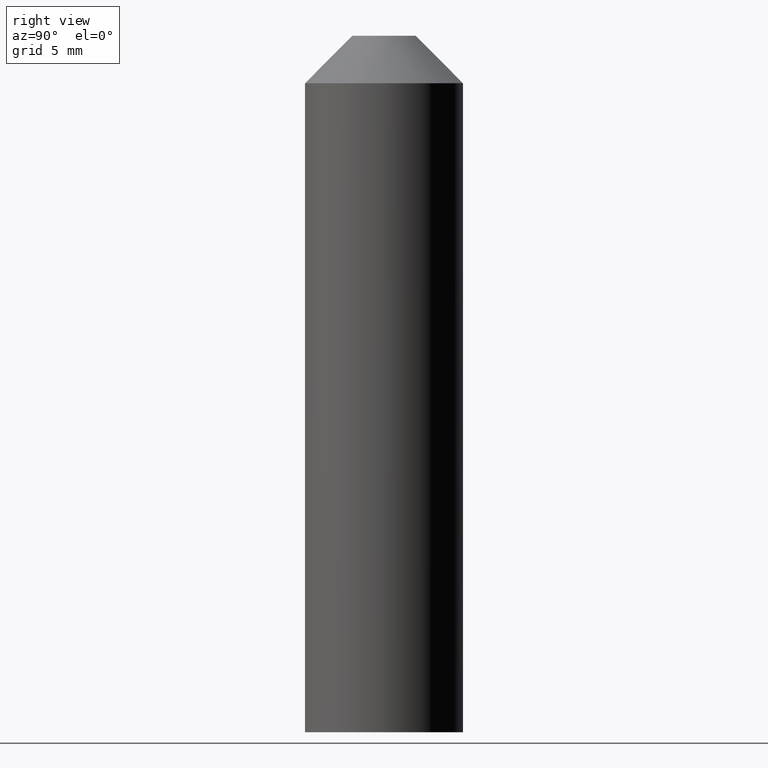
[diagram: clean part render]
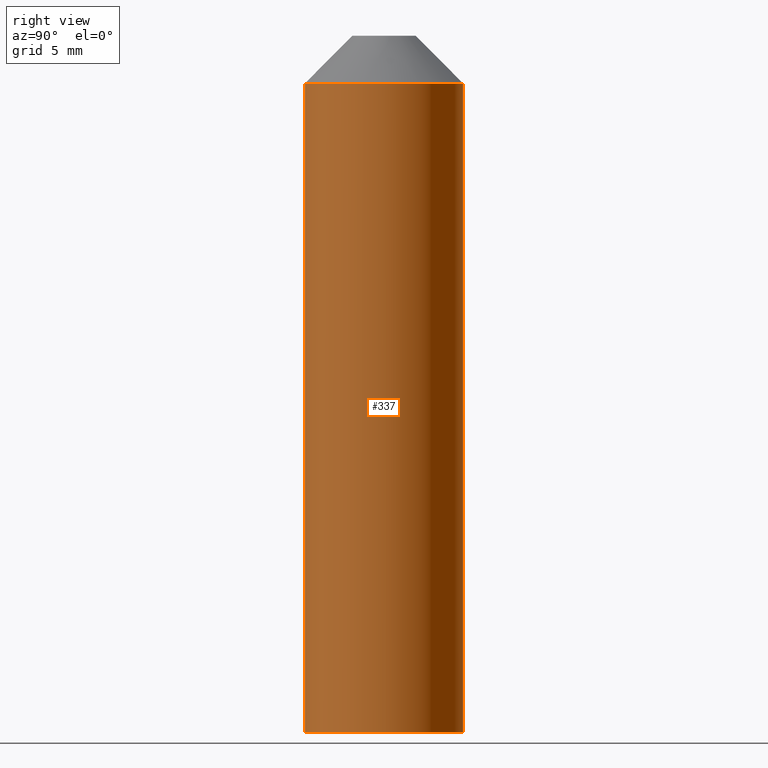
[diagram: same view with one face highlighted and labeled with its STEP entity id]
A machine part, right view. The second image highlights one B-rep face of the part: STEP entity #337.
In plain terms, the highlighted face is a freeform B-spline surface patch.
Its self-contained STEP definition (entity closure, byte-faithful):
#95=CARTESIAN_POINT('',(-0.305242697718337,4.990673992112464,40.999999999988383));
#96=VERTEX_POINT('',#95);
#97=CARTESIAN_POINT('',(5.0,0.0,41.0));
#98=VERTEX_POINT('',#97);
#99=CARTESIAN_POINT('',(-0.305242697718337,4.990673992112465,40.999999999988383));
#100=CARTESIAN_POINT('',(-0.152763816494045,5.000000000008354,40.999999999988546));
#101=CARTESIAN_POINT('',(4.205639E-011,5.000000000008225,40.999999999988717));
#102=CARTESIAN_POINT('',(5.000000000020386,5.000000000003987,40.999999999994543));
#103=CARTESIAN_POINT('',(5.0,0.0,41.0));
#111=(BOUNDED_CURVE()B_SPLINE_CURVE(2,(#99,#100,#101,#102,#103),.UNSPECIFIED.,.F.,.U.)B_SPLINE_CURVE_WITH_KNOTS((3,2,3),(0.239332962238947,0.250000000000000,0.500000000000000),.UNSPECIFIED.)CURVE()GEOMETRIC_REPRESENTATION_ITEM()RATIONAL_B_SPLINE_CURVE((0.976072041666726,0.987502787899842,1.0,0.707106781186548,1.0))REPRESENTATION_ITEM(''));
#112=EDGE_CURVE('',#96,#98,#111,.T.);
#121=CARTESIAN_POINT('',(0.305242697718337,-4.990673992112464,40.999999999988383));
#122=VERTEX_POINT('',#121);
#128=CARTESIAN_POINT('',(5.0,0.0,41.0));
#129=CARTESIAN_POINT('',(4.999999999978329,-4.703530334450192,40.999999999994202));
#130=CARTESIAN_POINT('',(0.305242697718336,-4.990673992112466,40.999999999988376));
#138=(BOUNDED_CURVE()B_SPLINE_CURVE(2,(#128,#129,#130),.UNSPECIFIED.,.F.,.U.)B_SPLINE_CURVE_WITH_KNOTS((3,3),(0.500000000000000,0.739332962238947),.UNSPECIFIED.)CURVE()GEOMETRIC_REPRESENTATION_ITEM()RATIONAL_B_SPLINE_CURVE((1.0,0.719603993286706,0.976072041666726))REPRESENTATION_ITEM(''));
#139=EDGE_CURVE('',#98,#122,#138,.T.);
#271=CARTESIAN_POINT('',(-0.305242697674285,4.990673992109334,42.025000000000013));
#272=CARTESIAN_POINT('',(4.685431294435048,5.295916689783620,42.025000000000013));
#273=CARTESIAN_POINT('',(4.990673992109334,0.305242697674285,42.025000000000013));
#274=CARTESIAN_POINT('',(5.295916689783620,-4.685431294435048,42.025000000000013));
#275=CARTESIAN_POINT('',(0.305242697674285,-4.990673992109334,42.025000000000013));
#276=CARTESIAN_POINT('',(-0.305242697674285,4.990673992109334,-1.050625000000117));
#277=CARTESIAN_POINT('',(4.685431294435048,5.295916689783620,-1.050625000000117));
#278=CARTESIAN_POINT('',(4.990673992109334,0.305242697674285,-1.050625000000117));
#279=CARTESIAN_POINT('',(5.295916689783620,-4.685431294435048,-1.050625000000117));
#280=CARTESIAN_POINT('',(0.305242697674285,-4.990673992109334,-1.050625000000117));
#288=(BOUNDED_SURFACE()B_SPLINE_SURFACE(2,1,((#271,#276),(#272,#277),(#273,#278),(#274,#279),(#275,#280)),.UNSPECIFIED.,.F.,.F.,.U.)B_SPLINE_SURFACE_WITH_KNOTS((3,2,3),(2,2),(0.0,8.284271247461899,16.568542494923800),(0.0,43.075625000000130),.UNSPECIFIED.)GEOMETRIC_REPRESENTATION_ITEM()RATIONAL_B_SPLINE_SURFACE(((1.0,1.0),(0.707106781186548,0.707106781186548),(1.0,1.0),(0.707106781186548,0.707106781186548),(1.0,1.0)))REPRESENTATION_ITEM('')SURFACE());
#289=CARTESIAN_POINT('',(-0.305242697700495,4.990673992107730,-1.134648E-013));
#290=VERTEX_POINT('',#289);
#291=CARTESIAN_POINT('',(-0.305242697718337,4.990673992112464,40.999999999988383));
#292=CARTESIAN_POINT('',(-0.305242697700495,4.990673992107730,-1.134648E-013));
#293=QUASI_UNIFORM_CURVE('',1,(#291,#292),.UNSPECIFIED.,.F.,.U.);
#294=EDGE_CURVE('',#96,#290,#293,.T.);
#295=ORIENTED_EDGE('',*,*,#294,.F.);
#296=ORIENTED_EDGE('',*,*,#112,.T.);
#297=ORIENTED_EDGE('',*,*,#139,.T.);
#298=CARTESIAN_POINT('',(0.305242697700496,-4.990673992107731,-1.133588E-013));
#299=VERTEX_POINT('',#298);
#300=CARTESIAN_POINT('',(0.305242697718337,-4.990673992112464,40.999999999988383));
#301=CARTESIAN_POINT('',(0.305242697700496,-4.990673992107731,-1.133588E-013));
#302=QUASI_UNIFORM_CURVE('',1,(#300,#301),.UNSPECIFIED.,.F.,.U.);
#303=EDGE_CURVE('',#122,#299,#302,.T.);
#304=ORIENTED_EDGE('',*,*,#303,.T.);
#305=CARTESIAN_POINT('',(5.0,0.0,0.0));
#306=VERTEX_POINT('',#305);
#307=CARTESIAN_POINT('',(5.0,0.0,0.0));
#308=CARTESIAN_POINT('',(5.0,-4.703530334503724,-1.069459E-013));
#309=CARTESIAN_POINT('',(0.305242697700497,-4.990673992107731,-1.134748E-013));
#317=(BOUNDED_CURVE()B_SPLINE_CURVE(2,(#307,#308,#309),.UNSPECIFIED.,.F.,.U.)B_SPLINE_CURVE_WITH_KNOTS((3,3),(0.500000000000000,0.739332962241062),.UNSPECIFIED.)CURVE()GEOMETRIC_REPRESENTATION_ITEM()RATIONAL_B_SPLINE_CURVE((1.0,0.719603993284227,0.976072041671259))REPRESENTATION_ITEM(''));
#318=EDGE_CURVE('',#306,#299,#317,.T.);
#319=ORIENTED_EDGE('',*,*,#318,.F.);
#320=CARTESIAN_POINT('',(-0.305242697700495,4.990673992107732,-1.136868E-013));
#321=CARTESIAN_POINT('',(-0.152763816506087,5.0,-1.136868E-013));
#322=CARTESIAN_POINT('',(0.0,5.0,-1.136868E-013));
#323=CARTESIAN_POINT('',(5.000000000000001,5.000000000000001,-1.136868E-013));
#324=CARTESIAN_POINT('',(5.0,0.0,-1.136868E-013));
#332=(BOUNDED_CURVE()B_SPLINE_CURVE(2,(#320,#321,#322,#323,#324),.UNSPECIFIED.,.F.,.U.)B_SPLINE_CURVE_WITH_KNOTS((3,2,3),(0.239332962241062,0.250000000000000,0.500000000000000),.UNSPECIFIED.)CURVE()GEOMETRIC_REPRESENTATION_ITEM()RATIONAL_B_SPLINE_CURVE((0.976072041671260,0.987502787902320,1.0,0.707106781186548,1.0))REPRESENTATION_ITEM(''));
#333=EDGE_CURVE('',#290,#306,#332,.T.);
#334=ORIENTED_EDGE('',*,*,#333,.F.);
#335=EDGE_LOOP('',(#295,#296,#297,#304,#319,#334));
#336=FACE_OUTER_BOUND('',#335,.T.);
#337=ADVANCED_FACE('',(#336),#288,.T.);